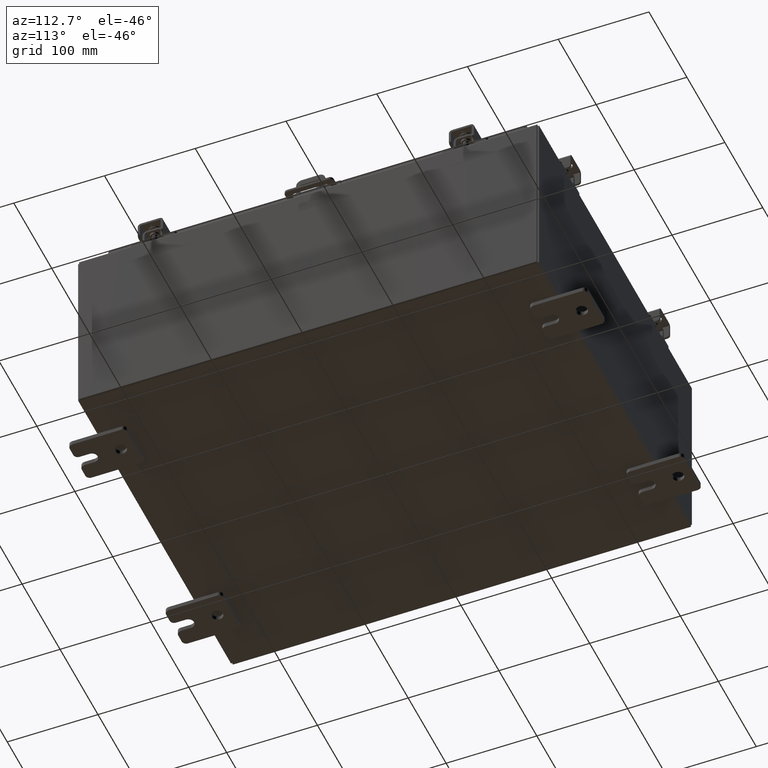
[diagram: clean part render]
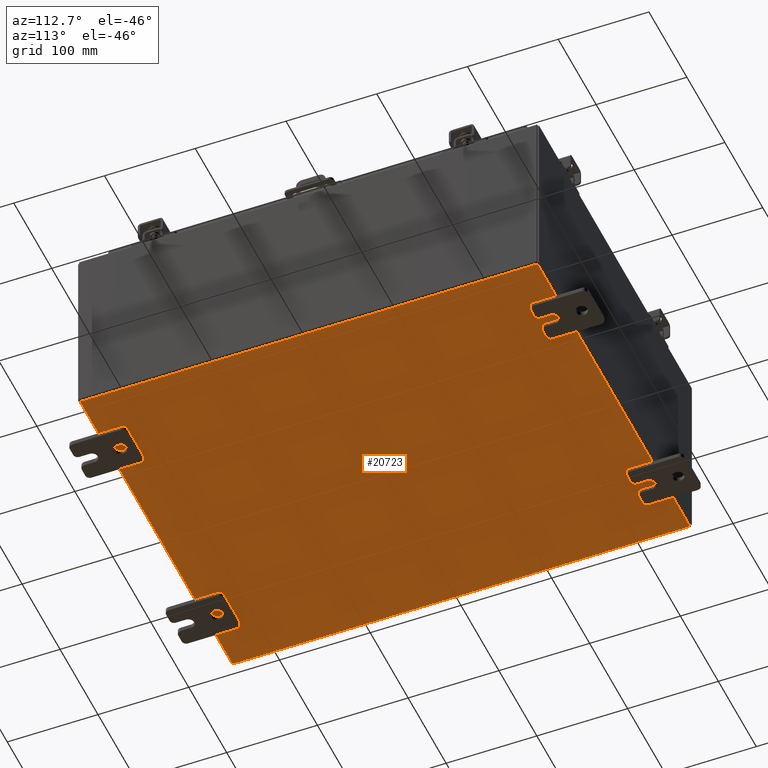
[diagram: same view with one face highlighted and labeled with its STEP entity id]
A machine part, auxiliary view. The second image highlights one B-rep face of the part: STEP entity #20723.
In plain terms, the highlighted planar face has unit normal (0, 0, -1).
Its self-contained STEP definition (entity closure, byte-faithful):
#201 = VERTEX_POINT ( 'NONE', #23702 ) ;
#2398 = EDGE_CURVE ( 'NONE', #18375, #201, #18989, .T. ) ;
#3008 = DIRECTION ( 'NONE',  ( -0.0000000000000000000, -1.000000000000000000, -0.0000000000000000000 ) ) ;
#4730 = VECTOR ( 'NONE', #3008, 39.37007874015748100 ) ;
#4854 = VECTOR ( 'NONE', #5142, 39.37007874015748100 ) ;
#5142 = DIRECTION ( 'NONE',  ( -1.000000000000000000, -0.0000000000000000000, -0.0000000000000000000 ) ) ;
#5159 = CARTESIAN_POINT ( 'NONE',  ( 7.912300000000001900, 9.925299999999998200, -0.07469999999999994700 ) ) ;
#5340 = DIRECTION ( 'NONE',  ( -1.000000000000000000, 0.0000000000000000000, -0.0000000000000000000 ) ) ;
#5347 = EDGE_CURVE ( 'NONE', #18375, #7860, #8760, .T. ) ;
#5546 = LINE ( 'NONE', #7436, #4854 ) ;
#6118 = CARTESIAN_POINT ( 'NONE',  ( -7.912299999999997400, -9.925300000000001800, -0.07469999999999994700 ) ) ;
#6297 = CARTESIAN_POINT ( 'NONE',  ( -7.912299999999997400, -9.925300000000000000, -0.07469999999999994700 ) ) ;
#6327 = ORIENTED_EDGE ( 'NONE', *, *, #2398, .T. ) ;
#7436 = CARTESIAN_POINT ( 'NONE',  ( -7.999999999999997300, 9.925299999999998200, -0.07470000000000000300 ) ) ;
#7782 = ORIENTED_EDGE ( 'NONE', *, *, #5347, .F. ) ;
#7860 = VERTEX_POINT ( 'NONE', #15141 ) ;
#8760 = LINE ( 'NONE', #24049, #20149 ) ;
#9714 = ORIENTED_EDGE ( 'NONE', *, *, #28174, .T. ) ;
#10375 = DIRECTION ( 'NONE',  ( 1.000000000000000000, 0.0000000000000000000, 0.0000000000000000000 ) ) ;
#11091 = DIRECTION ( 'NONE',  ( -0.0000000000000000000, 1.000000000000000000, -0.0000000000000000000 ) ) ;
#12135 = EDGE_CURVE ( 'NONE', #29286, #201, #5546, .T. ) ;
#14429 = PLANE ( 'NONE',  #16587 ) ;
#15141 = CARTESIAN_POINT ( 'NONE',  ( 7.912300000000001900, -9.925300000000001800, -0.07470000000000000300 ) ) ;
#16587 = AXIS2_PLACEMENT_3D ( 'NONE', #16717, #21182, #5340 ) ;
#16717 = CARTESIAN_POINT ( 'NONE',  ( 0.0000000000000000000, 0.0000000000000000000, -0.07470000000000000300 ) ) ;
#18280 = VECTOR ( 'NONE', #11091, 39.37007874015748100 ) ;
#18375 = VERTEX_POINT ( 'NONE', #6297 ) ;
#18989 = LINE ( 'NONE', #6118, #18280 ) ;
#19105 = FACE_OUTER_BOUND ( 'NONE', #23515, .T. ) ;
#20149 = VECTOR ( 'NONE', #10375, 39.37007874015748100 ) ;
#20723 = ADVANCED_FACE ( 'NONE', ( #19105 ), #14429, .T. ) ;
#21182 = DIRECTION ( 'NONE',  ( 0.0000000000000000000, 0.0000000000000000000, -1.000000000000000000 ) ) ;
#22118 = ORIENTED_EDGE ( 'NONE', *, *, #12135, .F. ) ;
#22928 = LINE ( 'NONE', #5159, #4730 ) ;
#23515 = EDGE_LOOP ( 'NONE', ( #7782, #6327, #22118, #9714 ) ) ;
#23702 = CARTESIAN_POINT ( 'NONE',  ( -7.912299999999997400, 9.925299999999998200, -0.07470000000000000300 ) ) ;
#24049 = CARTESIAN_POINT ( 'NONE',  ( -7.999999999999997300, -9.925300000000001800, -0.07470000000000000300 ) ) ;
#28174 = EDGE_CURVE ( 'NONE', #29286, #7860, #22928, .T. ) ;
#28939 = CARTESIAN_POINT ( 'NONE',  ( 7.912300000000001900, 9.925299999999996500, -0.07469999999999994700 ) ) ;
#29286 = VERTEX_POINT ( 'NONE', #28939 ) ;